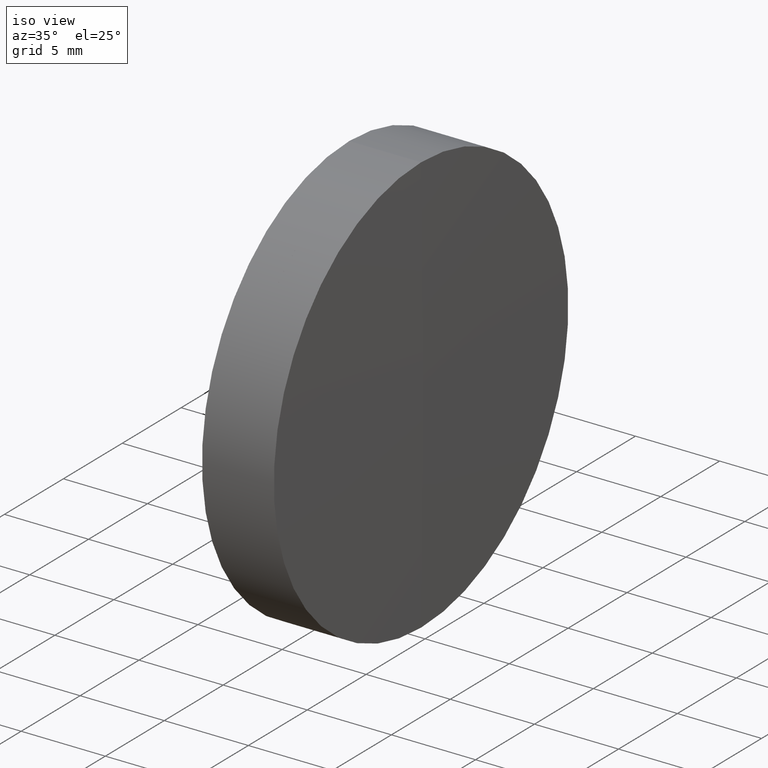
[diagram: clean part render]
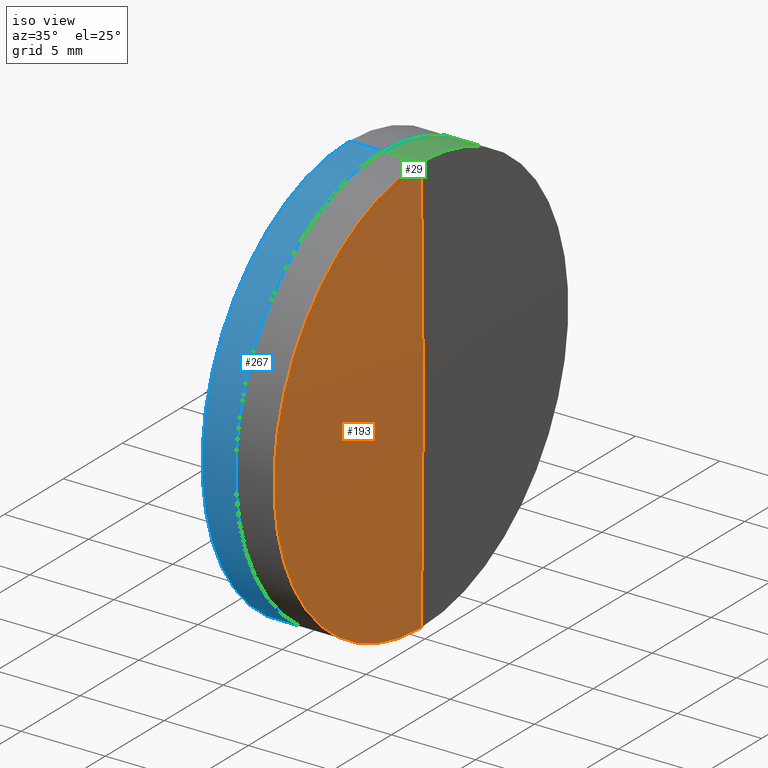
[diagram: same view with three faces highlighted in distinct colors, each labeled with its STEP entity id]
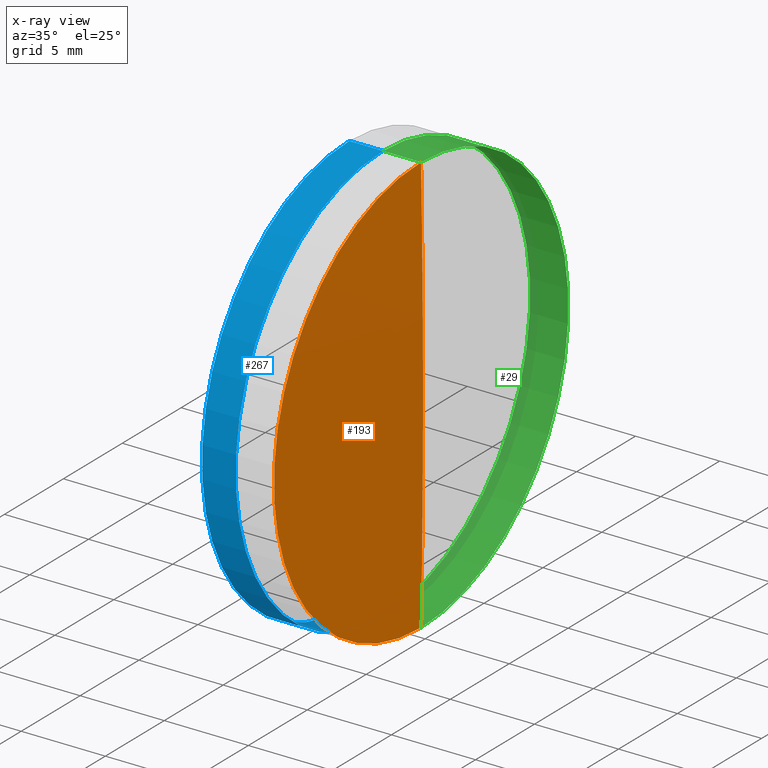
[diagram: x-ray of the same camera — body ghosted, the three highlighted faces saturated]
A machine part, iso view with three faces highlighted in distinct colors.
The next image is the same camera in x-ray (body ghosted, the three faces saturated) — at least one of them is partly hidden behind the body in this view.
Their STEP definitions:

[orange] entity #193 — the highlighted spherical surface has radius 669.8 mm.
#15 = DIRECTION ( 'NONE',  ( 0.0000000000000000000, 1.000000000000000000, 0.0000000000000000000 ) ) ;
#25 = CIRCLE ( 'NONE', #197, 669.7999999999999500 ) ;
#32 = DIRECTION ( 'NONE',  ( -0.0000000000000000000, 1.000000000000000000, 1.224646799147353200E-016 ) ) ;
#33 = DIRECTION ( 'NONE',  ( 0.0000000000000000000, 0.0000000000000000000, 1.000000000000000000 ) ) ;
#38 = VERTEX_POINT ( 'NONE', #188 ) ;
#40 = DIRECTION ( 'NONE',  ( 0.0000000000000000000, 0.0000000000000000000, -1.000000000000000000 ) ) ;
#44 = SPHERICAL_SURFACE ( 'NONE', #322, 669.7999999999999500 ) ;
#68 = CARTESIAN_POINT ( 'NONE',  ( -449.9203310264251700, 0.0000000000000000000, 0.0000000000000000000 ) ) ;
#74 = DIRECTION ( 'NONE',  ( -1.000000000000000000, -0.0000000000000000000, -0.0000000000000000000 ) ) ;
#78 = FACE_OUTER_BOUND ( 'NONE', #157, .T. ) ;
#83 = VERTEX_POINT ( 'NONE', #346 ) ;
#90 = VERTEX_POINT ( 'NONE', #297 ) ;
#99 = EDGE_CURVE ( 'NONE', #90, #38, #182, .T. ) ;
#102 = EDGE_CURVE ( 'NONE', #83, #90, #248, .T. ) ;
#105 = AXIS2_PLACEMENT_3D ( 'NONE', #240, #74, #333 ) ;
#111 = EDGE_CURVE ( 'NONE', #83, #38, #25, .T. ) ;
#139 = ORIENTED_EDGE ( 'NONE', *, *, #111, .T. ) ;
#141 = AXIS2_PLACEMENT_3D ( 'NONE', #309, #32, #201 ) ;
#148 = CARTESIAN_POINT ( 'NONE',  ( -449.9203310264251700, 0.0000000000000000000, 0.0000000000000000000 ) ) ;
#157 = EDGE_LOOP ( 'NONE', ( #261, #139, #227 ) ) ;
#182 = CIRCLE ( 'NONE', #105, 12.49999999999993600 ) ;
#188 = CARTESIAN_POINT ( 'NONE',  ( 219.7630195206821800, 0.0000000000000000000, 12.49999999999993600 ) ) ;
#193 = ADVANCED_FACE ( 'NONE', ( #78 ), #44, .T. ) ;
#197 = AXIS2_PLACEMENT_3D ( 'NONE', #68, #207, #40 ) ;
#201 = DIRECTION ( 'NONE',  ( 0.0000000000000000000, -1.224646799147353500E-016, 1.000000000000000000 ) ) ;
#207 = DIRECTION ( 'NONE',  ( 0.0000000000000000000, -1.000000000000000000, 0.0000000000000000000 ) ) ;
#227 = ORIENTED_EDGE ( 'NONE', *, *, #99, .F. ) ;
#240 = CARTESIAN_POINT ( 'NONE',  ( 219.7630195206821800, 0.0000000000000000000, 0.0000000000000000000 ) ) ;
#248 = CIRCLE ( 'NONE', #141, 669.7999999999999500 ) ;
#261 = ORIENTED_EDGE ( 'NONE', *, *, #102, .F. ) ;
#297 = CARTESIAN_POINT ( 'NONE',  ( 219.7630195206821800, 1.530808498934187200E-015, -12.49999999999993600 ) ) ;
#309 = CARTESIAN_POINT ( 'NONE',  ( -449.9203310264251700, 0.0000000000000000000, 0.0000000000000000000 ) ) ;
#322 = AXIS2_PLACEMENT_3D ( 'NONE', #148, #15, #33 ) ;
#333 = DIRECTION ( 'NONE',  ( 0.0000000000000000000, 0.0000000000000000000, 1.000000000000000000 ) ) ;
#346 = CARTESIAN_POINT ( 'NONE',  ( 219.8796689735747500, 0.0000000000000000000, 4.101342130344486000E-014 ) ) ;

[blue] entity #267 — the highlighted cylindrical surface (partial cylindrical patch) has radius 12.5 mm, axis along (-1, -0, -0).
#4 = ORIENTED_EDGE ( 'NONE', *, *, #58, .T. ) ;
#5 = VERTEX_POINT ( 'NONE', #134 ) ;
#7 = ORIENTED_EDGE ( 'NONE', *, *, #135, .F. ) ;
#17 = VERTEX_POINT ( 'NONE', #166 ) ;
#55 = ORIENTED_EDGE ( 'NONE', *, *, #241, .T. ) ;
#58 = EDGE_CURVE ( 'NONE', #5, #86, #260, .T. ) ;
#86 = VERTEX_POINT ( 'NONE', #243 ) ;
#92 = VECTOR ( 'NONE', #95, 1000.000000000000000 ) ;
#95 = DIRECTION ( 'NONE',  ( -1.000000000000000000, -0.0000000000000000000, -0.0000000000000000000 ) ) ;
#96 = LINE ( 'NONE', #178, #295 ) ;
#98 = DIRECTION ( 'NONE',  ( -1.000000000000000000, -0.0000000000000000000, -0.0000000000000000000 ) ) ;
#104 = DIRECTION ( 'NONE',  ( -1.000000000000000000, -0.0000000000000000000, -0.0000000000000000000 ) ) ;
#119 = DIRECTION ( 'NONE',  ( 0.0000000000000000000, 0.0000000000000000000, 1.000000000000000000 ) ) ;
#122 = AXIS2_PLACEMENT_3D ( 'NONE', #206, #233, #255 ) ;
#134 = CARTESIAN_POINT ( 'NONE',  ( 217.4944512575927400, 1.530808498934191300E-015, -12.49999999999999800 ) ) ;
#135 = EDGE_CURVE ( 'NONE', #5, #342, #96, .T. ) ;
#143 = CYLINDRICAL_SURFACE ( 'NONE', #122, 12.49999999999999800 ) ;
#147 = CIRCLE ( 'NONE', #247, 12.49999999999999800 ) ;
#150 = CARTESIAN_POINT ( 'NONE',  ( 215.4942533599098600, 0.0000000000000000000, 0.0000000000000000000 ) ) ;
#153 = EDGE_CURVE ( 'NONE', #342, #17, #147, .T. ) ;
#166 = CARTESIAN_POINT ( 'NONE',  ( 215.4942533599098600, 0.0000000000000000000, 12.49999999999993100 ) ) ;
#167 = LINE ( 'NONE', #204, #92 ) ;
#178 = CARTESIAN_POINT ( 'NONE',  ( -9.702612178336682500, 1.530808498934191300E-015, -12.49999999999999800 ) ) ;
#180 = CARTESIAN_POINT ( 'NONE',  ( 215.4942533599098600, 1.530808498934183000E-015, -12.49999999999993400 ) ) ;
#194 = ORIENTED_EDGE ( 'NONE', *, *, #153, .F. ) ;
#203 = EDGE_LOOP ( 'NONE', ( #7, #4, #55, #194 ) ) ;
#204 = CARTESIAN_POINT ( 'NONE',  ( -9.702612178336682500, 0.0000000000000000000, 12.49999999999999800 ) ) ;
#206 = CARTESIAN_POINT ( 'NONE',  ( -9.702612178336682500, 0.0000000000000000000, 0.0000000000000000000 ) ) ;
#229 = FACE_OUTER_BOUND ( 'NONE', #203, .T. ) ;
#233 = DIRECTION ( 'NONE',  ( -1.000000000000000000, -0.0000000000000000000, -0.0000000000000000000 ) ) ;
#241 = EDGE_CURVE ( 'NONE', #86, #17, #167, .T. ) ;
#243 = CARTESIAN_POINT ( 'NONE',  ( 217.4944512575927400, 0.0000000000000000000, 12.49999999999999800 ) ) ;
#247 = AXIS2_PLACEMENT_3D ( 'NONE', #150, #284, #119 ) ;
#255 = DIRECTION ( 'NONE',  ( 0.0000000000000000000, 0.0000000000000000000, 1.000000000000000000 ) ) ;
#257 = AXIS2_PLACEMENT_3D ( 'NONE', #296, #104, #264 ) ;
#260 = CIRCLE ( 'NONE', #257, 12.49999999999999800 ) ;
#264 = DIRECTION ( 'NONE',  ( 0.0000000000000000000, 0.0000000000000000000, 1.000000000000000000 ) ) ;
#267 = ADVANCED_FACE ( 'NONE', ( #229 ), #143, .T. ) ;
#284 = DIRECTION ( 'NONE',  ( -1.000000000000000000, -0.0000000000000000000, -0.0000000000000000000 ) ) ;
#295 = VECTOR ( 'NONE', #98, 1000.000000000000000 ) ;
#296 = CARTESIAN_POINT ( 'NONE',  ( 217.4944512575927400, 0.0000000000000000000, 0.0000000000000000000 ) ) ;
#342 = VERTEX_POINT ( 'NONE', #180 ) ;

[green] entity #29 — the highlighted cylindrical surface (partial cylindrical patch) has radius 12.5 mm, axis along (-1, -0, -0).
#12 = DIRECTION ( 'NONE',  ( -1.000000000000000000, -0.0000000000000000000, -0.0000000000000000000 ) ) ;
#18 = CARTESIAN_POINT ( 'NONE',  ( -0.5519199926577972300, 0.0000000000000000000, 12.49999999999999300 ) ) ;
#29 = ADVANCED_FACE ( 'NONE', ( #199 ), #331, .T. ) ;
#30 = AXIS2_PLACEMENT_3D ( 'NONE', #100, #287, #121 ) ;
#38 = VERTEX_POINT ( 'NONE', #188 ) ;
#54 = ORIENTED_EDGE ( 'NONE', *, *, #183, .T. ) ;
#62 = ORIENTED_EDGE ( 'NONE', *, *, #171, .F. ) ;
#63 = DIRECTION ( 'NONE',  ( -1.000000000000000000, -0.0000000000000000000, -0.0000000000000000000 ) ) ;
#64 = VECTOR ( 'NONE', #312, 1000.000000000000000 ) ;
#81 = DIRECTION ( 'NONE',  ( 0.0000000000000000000, 0.0000000000000000000, 1.000000000000000000 ) ) ;
#88 = VECTOR ( 'NONE', #12, 1000.000000000000000 ) ;
#90 = VERTEX_POINT ( 'NONE', #297 ) ;
#100 = CARTESIAN_POINT ( 'NONE',  ( 219.7630195206821800, 0.0000000000000000000, 0.0000000000000000000 ) ) ;
#106 = CARTESIAN_POINT ( 'NONE',  ( -0.5519199926577972300, 0.0000000000000000000, 0.0000000000000000000 ) ) ;
#121 = DIRECTION ( 'NONE',  ( 0.0000000000000000000, 0.0000000000000000000, 1.000000000000000000 ) ) ;
#127 = EDGE_LOOP ( 'NONE', ( #230, #54, #62, #151 ) ) ;
#128 = EDGE_CURVE ( 'NONE', #38, #302, #305, .T. ) ;
#151 = ORIENTED_EDGE ( 'NONE', *, *, #128, .F. ) ;
#156 = CIRCLE ( 'NONE', #30, 12.49999999999993600 ) ;
#171 = EDGE_CURVE ( 'NONE', #302, #212, #283, .T. ) ;
#176 = CARTESIAN_POINT ( 'NONE',  ( -0.5519199926577972300, 1.530808498934190700E-015, -12.49999999999999300 ) ) ;
#183 = EDGE_CURVE ( 'NONE', #90, #212, #217, .T. ) ;
#188 = CARTESIAN_POINT ( 'NONE',  ( 219.7630195206821800, 0.0000000000000000000, 12.49999999999993600 ) ) ;
#199 = FACE_OUTER_BOUND ( 'NONE', #127, .T. ) ;
#205 = CARTESIAN_POINT ( 'NONE',  ( 217.4944512575927100, 0.0000000000000000000, 0.0000000000000000000 ) ) ;
#209 = CARTESIAN_POINT ( 'NONE',  ( 217.4944512575927100, 0.0000000000000000000, 12.50000000000009800 ) ) ;
#212 = VERTEX_POINT ( 'NONE', #280 ) ;
#217 = LINE ( 'NONE', #176, #64 ) ;
#228 = AXIS2_PLACEMENT_3D ( 'NONE', #106, #299, #81 ) ;
#230 = ORIENTED_EDGE ( 'NONE', *, *, #251, .T. ) ;
#234 = AXIS2_PLACEMENT_3D ( 'NONE', #205, #63, #282 ) ;
#251 = EDGE_CURVE ( 'NONE', #38, #90, #156, .T. ) ;
#280 = CARTESIAN_POINT ( 'NONE',  ( 217.4944512575927100, 1.530808498934203600E-015, -12.50000000000009800 ) ) ;
#282 = DIRECTION ( 'NONE',  ( 0.0000000000000000000, 0.0000000000000000000, 1.000000000000000000 ) ) ;
#283 = CIRCLE ( 'NONE', #234, 12.50000000000005200 ) ;
#287 = DIRECTION ( 'NONE',  ( -1.000000000000000000, -0.0000000000000000000, -0.0000000000000000000 ) ) ;
#297 = CARTESIAN_POINT ( 'NONE',  ( 219.7630195206821800, 1.530808498934187200E-015, -12.49999999999993600 ) ) ;
#299 = DIRECTION ( 'NONE',  ( -1.000000000000000000, -0.0000000000000000000, -0.0000000000000000000 ) ) ;
#302 = VERTEX_POINT ( 'NONE', #209 ) ;
#305 = LINE ( 'NONE', #18, #88 ) ;
#312 = DIRECTION ( 'NONE',  ( -1.000000000000000000, -0.0000000000000000000, -0.0000000000000000000 ) ) ;
#331 = CYLINDRICAL_SURFACE ( 'NONE', #228, 12.49999999999999300 ) ;